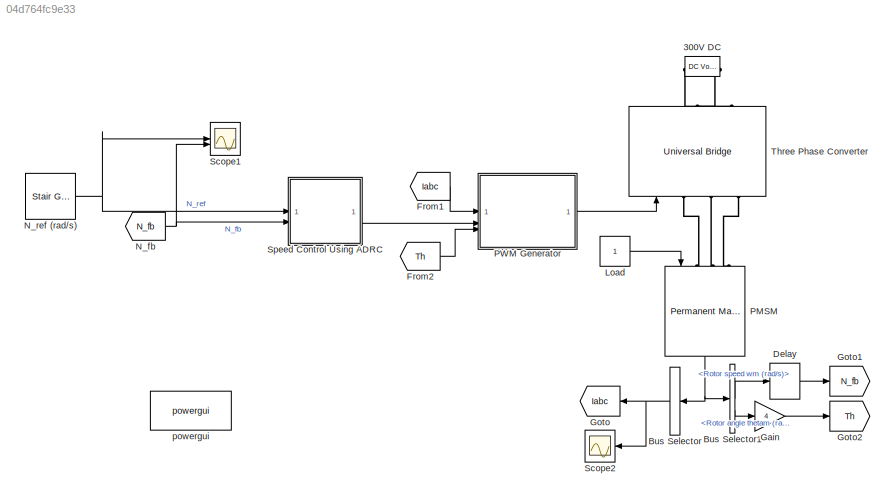
MODEL slx_04d764fc9e33
KIND model
CONFIG AbsTol = auto
CONFIG EnableMultiTasking = off
CONFIG FixedStep = auto
CONFIG MaxStep = auto
CONFIG MinStep = auto
CONFIG RelTol = 1e-3
CONFIG SampleTimeConstraint = Unconstrained
CONFIG SolverName = VariableStepAuto
CONFIG StartTime = 0.0
CONFIG StopTime = 3
BLOCK [Reference] 300V DC  REF=spsDCVoltageSourceLib/DC Voltage Source
  LibrarySourceBlock = sps_lib/Sources/DC Voltage Source
  NameLocation = top
  SourceBlock = spsDCVoltageSourceLib/DC Voltage Source
  SourceType = DC Voltage Source
BLOCK [BusSelector] Bus Selector
  OutputAsBus = on
  OutputSignals = Stator current is_a (A),Stator current is_b (A),Stator current is_c (A)
BLOCK [BusSelector] Bus Selector1
  OutputSignals = Rotor speed wm (rad/s),Rotor angle thetam (rad)
BLOCK [Delay] Delay
  DelayLength = 1
  InitialCondition = 0
  InputPortMap = u0
  UseCircularBuffer = on
  UserDataPersistent = on
BLOCK [From] From1
  GotoTag = Iabc
BLOCK [From] From2
  GotoTag = Th
BLOCK [Gain] Gain
  Gain = 4
BLOCK [Goto] Goto
  GotoTag = Iabc
BLOCK [Goto] Goto1
  GotoTag = N_fb
BLOCK [Goto] Goto2
  GotoTag = Th
BLOCK [Constant] Load
BLOCK [From] N_fb
  GotoTag = N_fb
BLOCK [Reference] N_ref (rad//s)  REF=eeStairGenerator/Stair Generator
  LibrarySourceBlock = ee_sl_lib/General Control/Stair Generator
  SourceBlock = eeStairGenerator/Stair Generator
  SourceType = Stair Generator
BLOCK [Reference] PMSM  REF=spsPermanentMagnetSynchronousMachineLib/Permanent Magnet
Synchronous Machine
  LibrarySourceBlock = sps_lib/Electrical Machines/Permanent Magnet\nSynchronous Machine
  NameLocation = right
  SourceBlock = spsPermanentMagnetSynchronousMachineLib/Permanent Magnet\nSynchronous Machine
  SourceType = Permanent Magnet Synchronous Machine
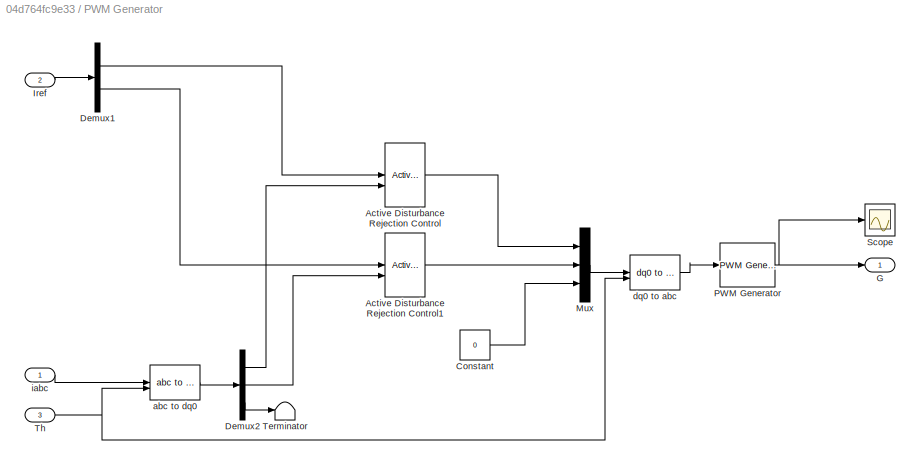
BLOCK [SubSystem] PWM Generator
BLOCK [Reference] PWM Generator/Active Disturbance Rejection Control  REF=slctrlblks/Active Disturbance Rejection Control
  SourceBlock = slctrlblks/Active Disturbance Rejection Control
  SourceType = Active Disturbance Rejection Control (ADRC)
BLOCK [Reference] PWM Generator/Active Disturbance Rejection Control1  REF=slctrlblks/Active Disturbance Rejection Control
  SourceBlock = slctrlblks/Active Disturbance Rejection Control
  SourceType = Active Disturbance Rejection Control (ADRC)
BLOCK [Constant] PWM Generator/Constant
  Value = 0
BLOCK [Demux] PWM Generator/Demux1
  Outputs = 2
BLOCK [Demux] PWM Generator/Demux2
  Outputs = 3
BLOCK [Outport] PWM Generator/G
BLOCK [Inport] PWM Generator/Iref
  Port = 2
BLOCK [Mux] PWM Generator/Mux
  DisplayOption = bar
  Inputs = 3
BLOCK [Reference] PWM Generator/PWM Generator  REF=spsPWMGenerator2LevelLib/PWM Generator
(2-Level)
  LibrarySourceBlock = sps_lib/Power Electronics/Power Electronics Control/PWM Generator\n(2-Level)
  SourceBlock = spsPWMGenerator2LevelLib/PWM Generator\n(2-Level)
  SourceType = PWM Generator (2-Level)
BLOCK [Scope] PWM Generator/Scope
  Floating = off
  NumInputPorts = 1
  ScopeSpecificationString = Simulink.scopes.TimeScopeBlockCfg('CurrentConfiguration', extmgr.ConfigurationSet(extmgr.Configuration('Core','General UI',true),extmgr.Configuration('Core','Source UI',true),extmgr.Configuration('Sources','WiredSimulink',true,'DataLoggingVariableName','ScopeData1'),extmgr.Configuration('Visuals','Time Domain',true,'SerializedDisplays',{struct('MinYLimReal','-0.04474','MaxYLimReal','1.03791','YLab...<+1510ch>
BLOCK [Terminator] PWM Generator/Terminator
BLOCK [Inport] PWM Generator/Th
  Port = 3
BLOCK [Reference] PWM Generator/abc to dq0  REF=spsabctodq0Lib/abc to dq0
  LibrarySourceBlock = sps_lib/Control/abc to dq0
  SourceBlock = spsabctodq0Lib/abc to dq0
  SourceType = abc to dq0 Transformation
BLOCK [Reference] PWM Generator/dq0 to abc  REF=spsdq0toabcLib/dq0 to abc
  LibrarySourceBlock = sps_lib/Control/dq0 to abc
  SourceBlock = spsdq0toabcLib/dq0 to abc
  SourceType = dq0 to abc Transformation
BLOCK [Inport] PWM Generator/iabc
BLOCK [Scope] Scope1
  Floating = off
  NumInputPorts = 2
  ScopeSpecificationString = Simulink.scopes.TimeScopeBlockCfg('CurrentConfiguration', extmgr.ConfigurationSet(extmgr.Configuration('Core','General UI',true),extmgr.Configuration('Core','Source UI',true),extmgr.Configuration('Sources','WiredSimulink',true,'DataLoggingVariableName','ScopeData2'),extmgr.Configuration('Visuals','Time Domain',true,'SerializedDisplays',{struct('MinYLimReal','-132.28316','MaxYLimReal','132.16717','...<+1650ch>
BLOCK [Scope] Scope2
  Floating = off
  NumInputPorts = 1
  ScopeSpecificationString = Simulink.scopes.TimeScopeBlockCfg('CurrentConfiguration', extmgr.ConfigurationSet(extmgr.Configuration('Core','General UI',true),extmgr.Configuration('Core','Source UI',true),extmgr.Configuration('Sources','WiredSimulink',true,'DataLoggingVariableName','ScopeData4'),extmgr.Configuration('Visuals','Time Domain',true,'SerializedDisplays',{struct('MinYLimReal','-77.08217','MaxYLimReal','66.54562','YL...<+1525ch>
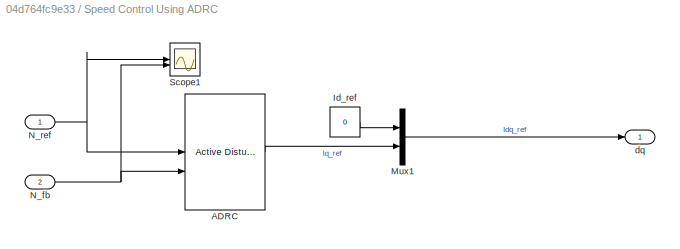
BLOCK [SubSystem] Speed Control Using ADRC
BLOCK [Reference] Speed Control Using ADRC/ADRC  REF=slctrlblks/Active Disturbance Rejection Control
  SourceBlock = slctrlblks/Active Disturbance Rejection Control
  SourceType = Active Disturbance Rejection Control (ADRC)
BLOCK [Constant] Speed Control Using ADRC/Id_ref
  NameLocation = top
  Value = 0
BLOCK [Mux] Speed Control Using ADRC/Mux1
  DisplayOption = bar
  Inputs = 2
BLOCK [Inport] Speed Control Using ADRC/N_fb
  Port = 2
BLOCK [Inport] Speed Control Using ADRC/N_ref
BLOCK [Scope] Speed Control Using ADRC/Scope1
  Floating = off
  NumInputPorts = 2
  ScopeSpecificationString = Simulink.scopes.TimeScopeBlockCfg('CurrentConfiguration', extmgr.ConfigurationSet(extmgr.Configuration('Core','General UI',true),extmgr.Configuration('Core','Source UI',true),extmgr.Configuration('Sources','WiredSimulink',true,'DataLoggingVariableName','ScopeData3'),extmgr.Configuration('Visuals','Time Domain',true,'SerializedDisplays',{struct('MinYLimReal','-142.64889','MaxYLimReal','141.23861','...<+1631ch>
BLOCK [Outport] Speed Control Using ADRC/dq
BLOCK [Reference] Three Phase Converter  REF=spsUniversalBridgeLib/Universal Bridge
  LibrarySourceBlock = sps_lib/Power Electronics/Universal Bridge
  NameLocation = right
  SourceBlock = spsUniversalBridgeLib/Universal Bridge
  SourceType = Universal Bridge
BLOCK [Reference] powergui  REF=sps_lib/powergui
  Priority = 1
  SourceBlock = sps_lib/powergui
  SourceType = PSB option menu block
LINE Bus Selector1:1 -> Delay:1
LINE Bus Selector1:2 -> Gain:1
NET Bus Selector:1 -> Goto:1, Scope2:1
LINE Delay:1 -> Goto1:1
LINE From1:1 -> PWM Generator:1
LINE From2:1 -> PWM Generator:3
LINE Gain:1 -> Goto2:1
LINE Load:1 -> PMSM:1
NET N_fb:1 -> Scope1:2, Speed Control Using ADRC:2
NET N_ref (rad//s):1 -> Scope1:1, Speed Control Using ADRC:1
NET PMSM:1 -> Bus Selector1:1, Bus Selector:1
LINE PWM Generator/Active Disturbance Rejection Control1:1 -> PWM Generator/Mux:2
LINE PWM Generator/Active Disturbance Rejection Control:1 -> PWM Generator/Mux:1
LINE PWM Generator/Constant:1 -> PWM Generator/Mux:3
LINE PWM Generator/Demux1:1 -> PWM Generator/Active Disturbance Rejection Control:1
LINE PWM Generator/Demux1:2 -> PWM Generator/Active Disturbance Rejection Control1:1
LINE PWM Generator/Demux2:1 -> PWM Generator/Active Disturbance Rejection Control:2
LINE PWM Generator/Demux2:2 -> PWM Generator/Active Disturbance Rejection Control1:2
LINE PWM Generator/Demux2:3 -> PWM Generator/Terminator:1
LINE PWM Generator/Iref:1 -> PWM Generator/Demux1:1
LINE PWM Generator/Mux:1 -> PWM Generator/dq0 to abc:1
NET PWM Generator/PWM Generator:1 -> PWM Generator/G:1, PWM Generator/Scope:1
NET PWM Generator/Th:1 -> PWM Generator/abc to dq0:2, PWM Generator/dq0 to abc:2
LINE PWM Generator/abc to dq0:1 -> PWM Generator/Demux2:1
LINE PWM Generator/dq0 to abc:1 -> PWM Generator/PWM Generator:1
LINE PWM Generator/iabc:1 -> PWM Generator/abc to dq0:1
LINE PWM Generator:1 -> Three Phase Converter:1
LINE Speed Control Using ADRC/ADRC:1 -> Speed Control Using ADRC/Mux1:2
LINE Speed Control Using ADRC/Id_ref:1 -> Speed Control Using ADRC/Mux1:1
LINE Speed Control Using ADRC/Mux1:1 -> Speed Control Using ADRC/dq:1
NET Speed Control Using ADRC/N_fb:1 -> Speed Control Using ADRC/ADRC:2, Speed Control Using ADRC/Scope1:2
NET Speed Control Using ADRC/N_ref:1 -> Speed Control Using ADRC/ADRC:1, Speed Control Using ADRC/Scope1:1
LINE Speed Control Using ADRC:1 -> PWM Generator:2
PLINE 300V DC:LConn1 -- Three Phase Converter:RConn2
PLINE 300V DC:RConn1 -- Three Phase Converter:RConn1
PLINE PMSM:LConn1 -- Three Phase Converter:LConn1
PLINE PMSM:LConn2 -- Three Phase Converter:LConn2
PLINE PMSM:LConn3 -- Three Phase Converter:LConn3
note: NET lines group one-source signal fan-out (src -> all destinations, sorted); 1:1 wires keep LINE
